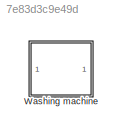
MODEL slx_7e83d3c9e49d
KIND model
CONFIG AbsTol = auto
CONFIG EnableMultiTasking = off
CONFIG FixedStep = auto
CONFIG MaxStep = auto
CONFIG MinStep = auto
CONFIG RelTol = 1e-3
CONFIG SampleTimeConstraint = Unconstrained
CONFIG SolverName = VariableStepAuto
CONFIG StartTime = 0.0
CONFIG StopTime = 10.0
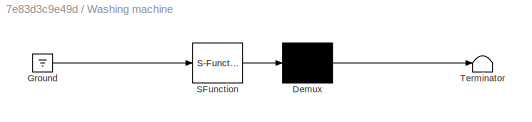
BLOCK [SubSystem] Washing machine
  ErrorFcn = Stateflow.Translate.translate
  PermitHierarchicalResolution = ExplicitOnly
  Ports = []
  RequestExecContextInheritance = off
  SFBlockType = Chart
  TreatAsAtomicUnit = on
BLOCK [Demux] Washing machine/ Demux 
  Outputs = 1
  Ports = [1, 1]
BLOCK [Ground] Washing machine/ Ground 
BLOCK [S-Function] Washing machine/ SFunction 
  EnableBusSupport = on
  FunctionName = sf_sfun
  PortCounts = [1 1]
  Ports = [1, 1]
  SFcnIsStateOwnerBlock = off
  SFunctionDeploymentMode = off
  Tag = Stateflow S-Function 3
BLOCK [Terminator] Washing machine/ Terminator 
CHART Washing machine states=7 transitions=11
  STATE_LABEL 'On\non E:fprintf("Washing Completed!");\n'
  STATE_LABEL 'AddWater\ndu:time = time + 1;\nen:fprintf("Add water");\ntime = time + 1;\n'
  STATE_LABEL 'Washing\ndu:time = time + 1;\nen:fprintf("Washing");\ntime = time + 1;'
  STATE_LABEL '[time>=5]/{time=0;}'
  STATE_LABEL '[time>=10]/{time=0;}'
  STATE_LABEL 'H'
  STATE_LABEL 'AddWater\ndu:time = time + 1;\nen:fprintf("Add water");\ntime = time + 1;\n'
  STATE_LABEL 'Washing\ndu:time = time + 1;\nen:fprintf("Washing");\ntime = time + 1;'
  STATE_LABEL 'Off'
  STATE_LABEL 'Ready\nen:fprintf("Init");\nremain = 45;\n'
  STATE_LABEL 'Sleep\nen:time = 0;\nfinish = 0;\n'
  STATE_LABEL 'Pending\nen:fprintf("Pending");'
  STATE_LABEL 'START'
  STATE_LABEL 'STOP'
  STATE_LABEL 'Ready\nen:fprintf("Init");\nremain = 45;\n'
  STATE_LABEL 'Sleep\nen:time = 0;\nfinish = 0;\n'
  STATE_LABEL 'Pending\nen:fprintf("Pending");'
CHART  states=0 transitions=0
